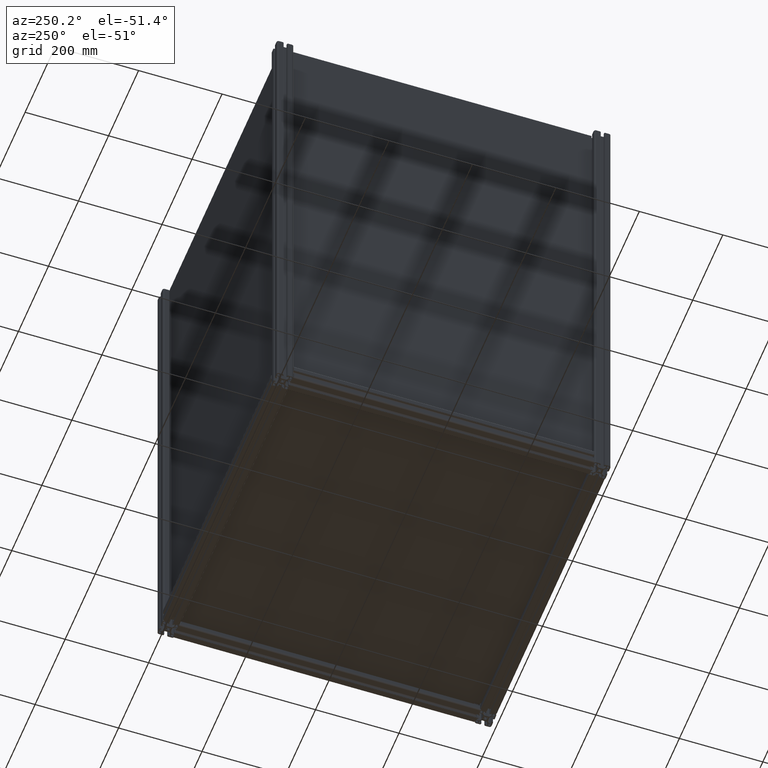
[diagram: clean part render]
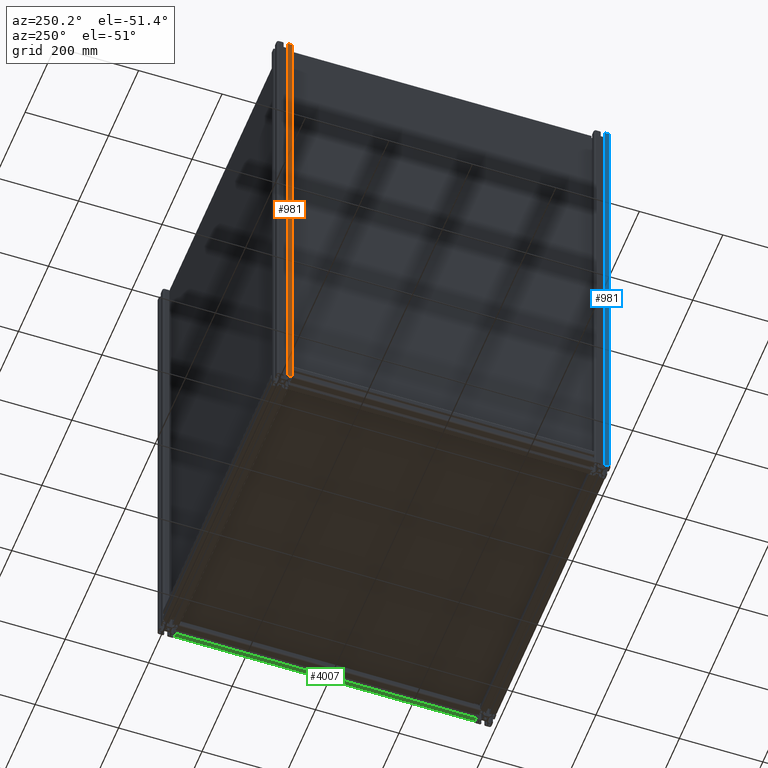
[diagram: same view with three faces highlighted in distinct colors, each labeled with its STEP entity id]
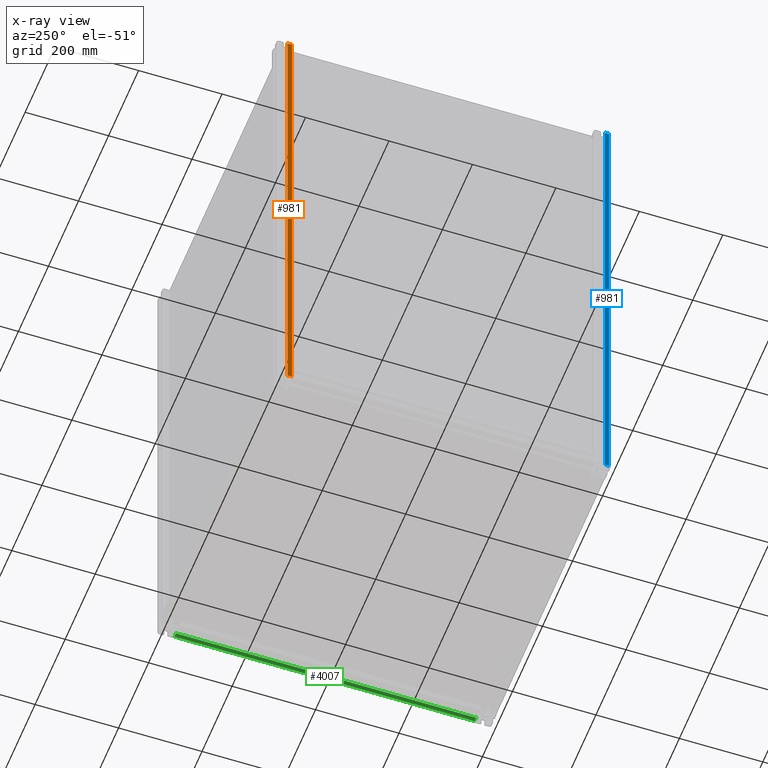
[diagram: x-ray of the same camera — body ghosted, the three highlighted faces saturated]
A machine part, auxiliary view with three faces highlighted in distinct colors.
The next image is the same camera in x-ray (body ghosted, the three faces saturated) — at least one of them is partly hidden behind the body in this view.
Their STEP definitions:

[orange] entity #981 — the highlighted planar face has unit normal (1, 0, 0).
#70 = DIRECTION ( 'NONE',  ( 1.000000000000000000, 0.000000000000000000, 0.000000000000000000 ) ) ;
#157 = AXIS2_PLACEMENT_3D ( 'NONE', #7027, #70, #1611 ) ;
#242 = LINE ( 'NONE', #5281, #8034 ) ;
#394 = CARTESIAN_POINT ( 'NONE',  ( -20.00000000000180123, -5.100000000000370903, 600.0000000000000000 ) ) ;
#587 = LINE ( 'NONE', #3367, #8135 ) ;
#611 = DIRECTION ( 'NONE',  ( -1.080866165800837046E-13, 1.000000000000000000, 0.000000000000000000 ) ) ;
#981 = ADVANCED_FACE ( 'NONE', ( #2203 ), #8904, .F. ) ;
#1428 = VERTEX_POINT ( 'NONE', #394 ) ;
#1462 = DIRECTION ( 'NONE',  ( 4.370168756787335406E-14, -1.000000000000000000, 0.000000000000000000 ) ) ;
#1611 = DIRECTION ( 'NONE',  ( 0.000000000000000000, 1.000000000000000000, 0.000000000000000000 ) ) ;
#1622 = ORIENTED_EDGE ( 'NONE', *, *, #3116, .F. ) ;
#2203 = FACE_OUTER_BOUND ( 'NONE', #5720, .T. ) ;
#2878 = DIRECTION ( 'NONE',  ( 0.000000000000000000, 0.000000000000000000, -1.000000000000000000 ) ) ;
#2957 = EDGE_CURVE ( 'NONE', #3639, #4268, #4190, .T. ) ;
#3116 = EDGE_CURVE ( 'NONE', #1428, #3639, #587, .T. ) ;
#3367 = CARTESIAN_POINT ( 'NONE',  ( -20.00000000000180123, -5.100000000000370903, 600.0000000000000000 ) ) ;
#3639 = VERTEX_POINT ( 'NONE', #4798 ) ;
#3814 = ORIENTED_EDGE ( 'NONE', *, *, #10883, .F. ) ;
#4190 = LINE ( 'NONE', #4697, #4253 ) ;
#4253 = VECTOR ( 'NONE', #2878, 1000.000000000000000 ) ;
#4268 = VERTEX_POINT ( 'NONE', #8162 ) ;
#4697 = CARTESIAN_POINT ( 'NONE',  ( -20.00000000000089884, -15.50000000000129852, 800.0000000000000000 ) ) ;
#4798 = CARTESIAN_POINT ( 'NONE',  ( -20.00000000000135003, -15.50000000000129852, 600.0000000000000000 ) ) ;
#5267 = ORIENTED_EDGE ( 'NONE', *, *, #11136, .F. ) ;
#5281 = CARTESIAN_POINT ( 'NONE',  ( -20.00000000000180123, -5.100000000000370903, 800.0000000000000000 ) ) ;
#5675 = ORIENTED_EDGE ( 'NONE', *, *, #2957, .F. ) ;
#5720 = EDGE_LOOP ( 'NONE', ( #1622, #5267, #3814, #5675 ) ) ;
#6174 = DIRECTION ( 'NONE',  ( 0.000000000000000000, 0.000000000000000000, 1.000000000000000000 ) ) ;
#7027 = CARTESIAN_POINT ( 'NONE',  ( -20.00000000000180123, -5.100000000000360245, 800.0000000000000000 ) ) ;
#7262 = VERTEX_POINT ( 'NONE', #11540 ) ;
#7385 = VECTOR ( 'NONE', #611, 1000.000000000000000 ) ;
#8034 = VECTOR ( 'NONE', #6174, 1000.000000000000000 ) ;
#8135 = VECTOR ( 'NONE', #1462, 1000.000000000000000 ) ;
#8162 = CARTESIAN_POINT ( 'NONE',  ( -20.00000000000033751, -15.50000000000129852, -600.0000000000000000 ) ) ;
#8741 = CARTESIAN_POINT ( 'NONE',  ( -20.00000000000067857, -15.50000000000129852, -600.0000000000000000 ) ) ;
#8904 = PLANE ( 'NONE',  #157 ) ;
#10883 = EDGE_CURVE ( 'NONE', #4268, #7262, #11191, .T. ) ;
#11136 = EDGE_CURVE ( 'NONE', #7262, #1428, #242, .T. ) ;
#11191 = LINE ( 'NONE', #8741, #7385 ) ;
#11540 = CARTESIAN_POINT ( 'NONE',  ( -20.00000000000180123, -5.100000000000370903, -600.0000000000000000 ) ) ;

[blue] entity #981 — the highlighted planar face has unit normal (1, 0, 0).
#70 = DIRECTION ( 'NONE',  ( 1.000000000000000000, 0.000000000000000000, 0.000000000000000000 ) ) ;
#157 = AXIS2_PLACEMENT_3D ( 'NONE', #7027, #70, #1611 ) ;
#242 = LINE ( 'NONE', #5281, #8034 ) ;
#394 = CARTESIAN_POINT ( 'NONE',  ( -20.00000000000180123, -5.100000000000370903, 600.0000000000000000 ) ) ;
#587 = LINE ( 'NONE', #3367, #8135 ) ;
#611 = DIRECTION ( 'NONE',  ( -1.080866165800837046E-13, 1.000000000000000000, 0.000000000000000000 ) ) ;
#981 = ADVANCED_FACE ( 'NONE', ( #2203 ), #8904, .F. ) ;
#1428 = VERTEX_POINT ( 'NONE', #394 ) ;
#1462 = DIRECTION ( 'NONE',  ( 4.370168756787335406E-14, -1.000000000000000000, 0.000000000000000000 ) ) ;
#1611 = DIRECTION ( 'NONE',  ( 0.000000000000000000, 1.000000000000000000, 0.000000000000000000 ) ) ;
#1622 = ORIENTED_EDGE ( 'NONE', *, *, #3116, .F. ) ;
#2203 = FACE_OUTER_BOUND ( 'NONE', #5720, .T. ) ;
#2878 = DIRECTION ( 'NONE',  ( 0.000000000000000000, 0.000000000000000000, -1.000000000000000000 ) ) ;
#2957 = EDGE_CURVE ( 'NONE', #3639, #4268, #4190, .T. ) ;
#3116 = EDGE_CURVE ( 'NONE', #1428, #3639, #587, .T. ) ;
#3367 = CARTESIAN_POINT ( 'NONE',  ( -20.00000000000180123, -5.100000000000370903, 600.0000000000000000 ) ) ;
#3639 = VERTEX_POINT ( 'NONE', #4798 ) ;
#3814 = ORIENTED_EDGE ( 'NONE', *, *, #10883, .F. ) ;
#4190 = LINE ( 'NONE', #4697, #4253 ) ;
#4253 = VECTOR ( 'NONE', #2878, 1000.000000000000000 ) ;
#4268 = VERTEX_POINT ( 'NONE', #8162 ) ;
#4697 = CARTESIAN_POINT ( 'NONE',  ( -20.00000000000089884, -15.50000000000129852, 800.0000000000000000 ) ) ;
#4798 = CARTESIAN_POINT ( 'NONE',  ( -20.00000000000135003, -15.50000000000129852, 600.0000000000000000 ) ) ;
#5267 = ORIENTED_EDGE ( 'NONE', *, *, #11136, .F. ) ;
#5281 = CARTESIAN_POINT ( 'NONE',  ( -20.00000000000180123, -5.100000000000370903, 800.0000000000000000 ) ) ;
#5675 = ORIENTED_EDGE ( 'NONE', *, *, #2957, .F. ) ;
#5720 = EDGE_LOOP ( 'NONE', ( #1622, #5267, #3814, #5675 ) ) ;
#6174 = DIRECTION ( 'NONE',  ( 0.000000000000000000, 0.000000000000000000, 1.000000000000000000 ) ) ;
#7027 = CARTESIAN_POINT ( 'NONE',  ( -20.00000000000180123, -5.100000000000360245, 800.0000000000000000 ) ) ;
#7262 = VERTEX_POINT ( 'NONE', #11540 ) ;
#7385 = VECTOR ( 'NONE', #611, 1000.000000000000000 ) ;
#8034 = VECTOR ( 'NONE', #6174, 1000.000000000000000 ) ;
#8135 = VECTOR ( 'NONE', #1462, 1000.000000000000000 ) ;
#8162 = CARTESIAN_POINT ( 'NONE',  ( -20.00000000000033751, -15.50000000000129852, -600.0000000000000000 ) ) ;
#8741 = CARTESIAN_POINT ( 'NONE',  ( -20.00000000000067857, -15.50000000000129852, -600.0000000000000000 ) ) ;
#8904 = PLANE ( 'NONE',  #157 ) ;
#10883 = EDGE_CURVE ( 'NONE', #4268, #7262, #11191, .T. ) ;
#11136 = EDGE_CURVE ( 'NONE', #7262, #1428, #242, .T. ) ;
#11191 = LINE ( 'NONE', #8741, #7385 ) ;
#11540 = CARTESIAN_POINT ( 'NONE',  ( -20.00000000000180123, -5.100000000000370903, -600.0000000000000000 ) ) ;

[green] entity #4007 — the highlighted planar face has unit normal (0, 0, 1).
#243 = EDGE_CURVE ( 'NONE', #3113, #2227, #1609, .T. ) ;
#511 = CARTESIAN_POINT ( 'NONE',  ( 5.100000000000370903, -19.99999999999819877, 0.000000000000000000 ) ) ;
#1460 = AXIS2_PLACEMENT_3D ( 'NONE', #5391, #9942, #2171 ) ;
#1609 = LINE ( 'NONE', #8224, #5488 ) ;
#2169 = EDGE_CURVE ( 'NONE', #8880, #3113, #7197, .T. ) ;
#2171 = DIRECTION ( 'NONE',  ( 1.000000000000000000, 0.000000000000000000, 0.000000000000000000 ) ) ;
#2227 = VERTEX_POINT ( 'NONE', #4183 ) ;
#3113 = VERTEX_POINT ( 'NONE', #6937 ) ;
#3694 = VECTOR ( 'NONE', #5892, 1000.000000000000000 ) ;
#4007 = ADVANCED_FACE ( 'NONE', ( #5480 ), #4746, .F. ) ;
#4183 = CARTESIAN_POINT ( 'NONE',  ( 15.50000000000000000, -19.99999999999819877, 0.000000000000000000 ) ) ;
#4303 = EDGE_CURVE ( 'NONE', #11555, #8880, #9778, .T. ) ;
#4746 = PLANE ( 'NONE',  #1460 ) ;
#4747 = EDGE_LOOP ( 'NONE', ( #7302, #7898, #9316, #9445 ) ) ;
#5016 = CARTESIAN_POINT ( 'NONE',  ( 5.100000000000360245, -19.99999999999819877, 0.000000000000000000 ) ) ;
#5336 = VECTOR ( 'NONE', #5875, 1000.000000000000000 ) ;
#5391 = CARTESIAN_POINT ( 'NONE',  ( 5.100000000000360245, -19.99999999999819877, 720.0000000000000000 ) ) ;
#5480 = FACE_OUTER_BOUND ( 'NONE', #4747, .T. ) ;
#5488 = VECTOR ( 'NONE', #10561, 1000.000000000000000 ) ;
#5875 = DIRECTION ( 'NONE',  ( 1.000000000000000000, 0.000000000000000000, 0.000000000000000000 ) ) ;
#5892 = DIRECTION ( 'NONE',  ( 1.000000000000000000, 0.000000000000000000, 0.000000000000000000 ) ) ;
#6002 = VECTOR ( 'NONE', #8233, 1000.000000000000000 ) ;
#6425 = CARTESIAN_POINT ( 'NONE',  ( 5.100000000000370903, -19.99999999999819877, 720.0000000000000000 ) ) ;
#6474 = EDGE_CURVE ( 'NONE', #11555, #2227, #9064, .T. ) ;
#6937 = CARTESIAN_POINT ( 'NONE',  ( 15.50000000000000000, -19.99999999999819877, 720.0000000000000000 ) ) ;
#7116 = CARTESIAN_POINT ( 'NONE',  ( 5.100000000000370903, -19.99999999999819877, 720.0000000000000000 ) ) ;
#7197 = LINE ( 'NONE', #9317, #3694 ) ;
#7302 = ORIENTED_EDGE ( 'NONE', *, *, #2169, .F. ) ;
#7898 = ORIENTED_EDGE ( 'NONE', *, *, #4303, .F. ) ;
#8224 = CARTESIAN_POINT ( 'NONE',  ( 15.50000000000000000, -19.99999999999819877, 720.0000000000000000 ) ) ;
#8233 = DIRECTION ( 'NONE',  ( 0.000000000000000000, 0.000000000000000000, 1.000000000000000000 ) ) ;
#8880 = VERTEX_POINT ( 'NONE', #7116 ) ;
#9064 = LINE ( 'NONE', #5016, #5336 ) ;
#9316 = ORIENTED_EDGE ( 'NONE', *, *, #6474, .T. ) ;
#9317 = CARTESIAN_POINT ( 'NONE',  ( -9.799999999999270628, -19.99999999999819877, 720.0000000000000000 ) ) ;
#9445 = ORIENTED_EDGE ( 'NONE', *, *, #243, .F. ) ;
#9778 = LINE ( 'NONE', #6425, #6002 ) ;
#9942 = DIRECTION ( 'NONE',  ( -0.000000000000000000, 1.000000000000000000, 0.000000000000000000 ) ) ;
#10561 = DIRECTION ( 'NONE',  ( 0.000000000000000000, 0.000000000000000000, -1.000000000000000000 ) ) ;
#11555 = VERTEX_POINT ( 'NONE', #511 ) ;